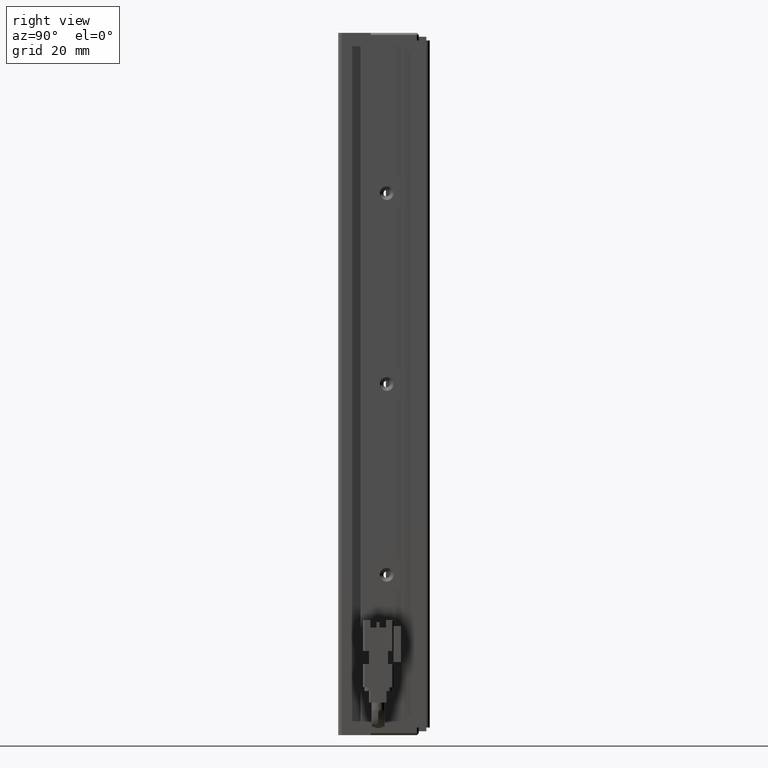
[diagram: clean part render]
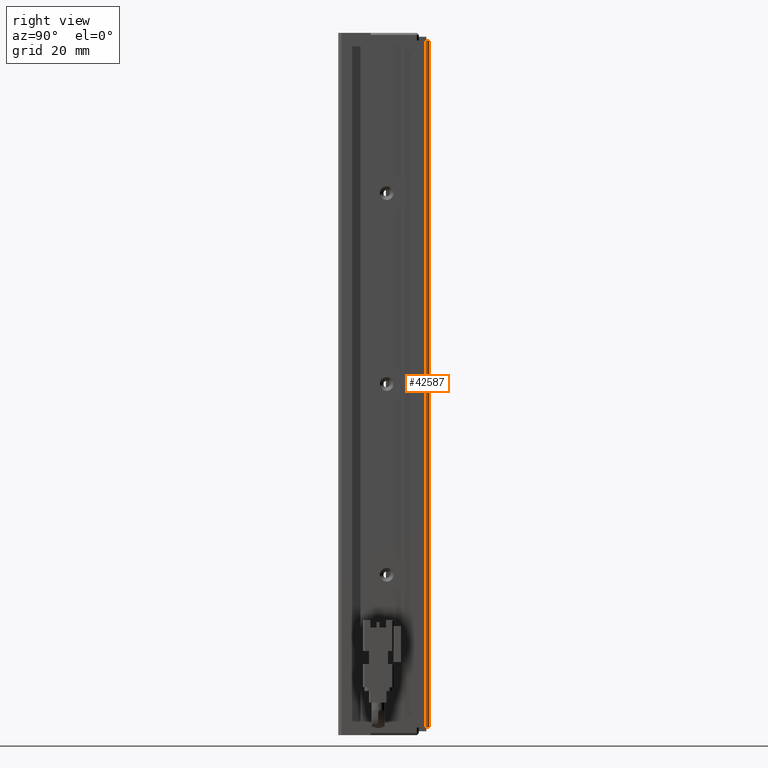
[diagram: same view with one face highlighted and labeled with its STEP entity id]
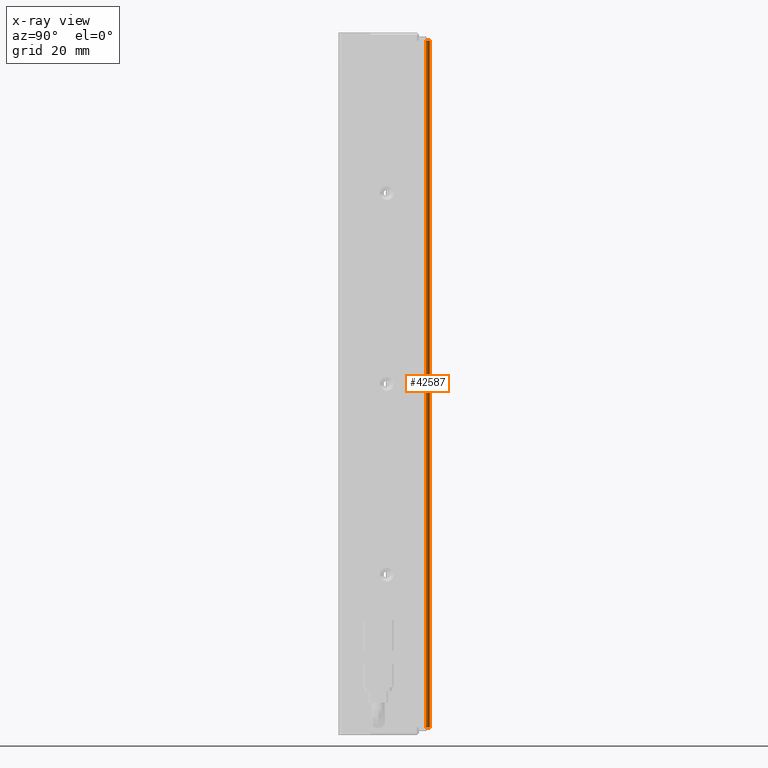
[diagram: x-ray of the same camera — body ghosted, the highlighted face saturated]
A machine part, right view. The second image highlights one B-rep face of the part: STEP entity #42587.
The next image is the same camera in x-ray: the body ghosted, the highlighted face saturated — about 0% of this face is hidden behind the body in this view.
In plain terms, the highlighted cylindrical surface (edge-blend (fillet) strip) has radius 1 mm, axis along (-0, -0, -1).
Its self-contained STEP definition (entity closure, byte-faithful):
#374 = VECTOR ( 'NONE', #17094, 1000.000000000000000 ) ;
#654 = DIRECTION ( 'NONE',  ( -0.0000000000000000000, -0.0000000000000000000, -1.000000000000000000 ) ) ;
#1422 = ORIENTED_EDGE ( 'NONE', *, *, #4688, .T. ) ;
#2282 = ORIENTED_EDGE ( 'NONE', *, *, #3891, .T. ) ;
#3891 = EDGE_CURVE ( 'NONE', #45836, #44561, #43755, .T. ) ;
#3929 = CARTESIAN_POINT ( 'NONE',  ( 51.42537974683541800, 33.99073232304837000, -23.00000000000000700 ) ) ;
#4688 = EDGE_CURVE ( 'NONE', #15091, #45836, #17768, .T. ) ;
#5374 = VERTEX_POINT ( 'NONE', #28265 ) ;
#8720 = CARTESIAN_POINT ( 'NONE',  ( 51.42537974683541800, 33.99073232304837000, -205.0000000000000300 ) ) ;
#10567 = LINE ( 'NONE', #3929, #24094 ) ;
#15091 = VERTEX_POINT ( 'NONE', #8720 ) ;
#16391 = DIRECTION ( 'NONE',  ( -1.000000000000000000, 0.0000000000000000000, 0.0000000000000000000 ) ) ;
#17094 = DIRECTION ( 'NONE',  ( 0.0000000000000000000, 0.0000000000000000000, 1.000000000000000000 ) ) ;
#17768 = CIRCLE ( 'NONE', #36029, 1.000000000000000900 ) ;
#19832 = CARTESIAN_POINT ( 'NONE',  ( 50.42537974683541800, 34.99073232304837700, -205.0000000000000300 ) ) ;
#22196 = DIRECTION ( 'NONE',  ( -1.000000000000000000, 0.0000000000000000000, 0.0000000000000000000 ) ) ;
#24094 = VECTOR ( 'NONE', #654, 1000.000000000000000 ) ;
#24732 = EDGE_LOOP ( 'NONE', ( #38417, #1422, #2282, #25084 ) ) ;
#25084 = ORIENTED_EDGE ( 'NONE', *, *, #38795, .T. ) ;
#27232 = EDGE_CURVE ( 'NONE', #5374, #15091, #10567, .T. ) ;
#27412 = CARTESIAN_POINT ( 'NONE',  ( 50.42537974683541800, 34.99073232304837700, -25.00000000000000700 ) ) ;
#27464 = DIRECTION ( 'NONE',  ( -1.000000000000000000, 0.0000000000000000000, 0.0000000000000000000 ) ) ;
#27541 = DIRECTION ( 'NONE',  ( 0.0000000000000000000, 0.0000000000000000000, 1.000000000000000000 ) ) ;
#27631 = CARTESIAN_POINT ( 'NONE',  ( 50.42537974683541800, 33.99073232304837000, -25.00000000000000700 ) ) ;
#27812 = AXIS2_PLACEMENT_3D ( 'NONE', #27631, #34474, #27464 ) ;
#27857 = CARTESIAN_POINT ( 'NONE',  ( 50.42537974683541800, 33.99073232304837000, -205.0000000000000300 ) ) ;
#28265 = CARTESIAN_POINT ( 'NONE',  ( 51.42537974683541800, 33.99073232304837000, -25.00000000000000700 ) ) ;
#32824 = CARTESIAN_POINT ( 'NONE',  ( 50.42537974683541800, 33.99073232304837000, -23.00000000000000700 ) ) ;
#33112 = AXIS2_PLACEMENT_3D ( 'NONE', #32824, #47213, #22196 ) ;
#33709 = FACE_OUTER_BOUND ( 'NONE', #24732, .T. ) ;
#34474 = DIRECTION ( 'NONE',  ( -0.0000000000000000000, -0.0000000000000000000, -1.000000000000000000 ) ) ;
#36029 = AXIS2_PLACEMENT_3D ( 'NONE', #27857, #27541, #16391 ) ;
#36367 = CIRCLE ( 'NONE', #27812, 1.000000000000000900 ) ;
#38417 = ORIENTED_EDGE ( 'NONE', *, *, #27232, .T. ) ;
#38795 = EDGE_CURVE ( 'NONE', #44561, #5374, #36367, .T. ) ;
#42587 = ADVANCED_FACE ( 'NONE', ( #33709 ), #44282, .T. ) ;
#43755 = LINE ( 'NONE', #47050, #374 ) ;
#44282 = CYLINDRICAL_SURFACE ( 'NONE', #33112, 1.000000000000000900 ) ;
#44561 = VERTEX_POINT ( 'NONE', #27412 ) ;
#45836 = VERTEX_POINT ( 'NONE', #19832 ) ;
#47050 = CARTESIAN_POINT ( 'NONE',  ( 50.42537974683541800, 34.99073232304837000, -23.00000000000000700 ) ) ;
#47213 = DIRECTION ( 'NONE',  ( -0.0000000000000000000, -0.0000000000000000000, -1.000000000000000000 ) ) ;